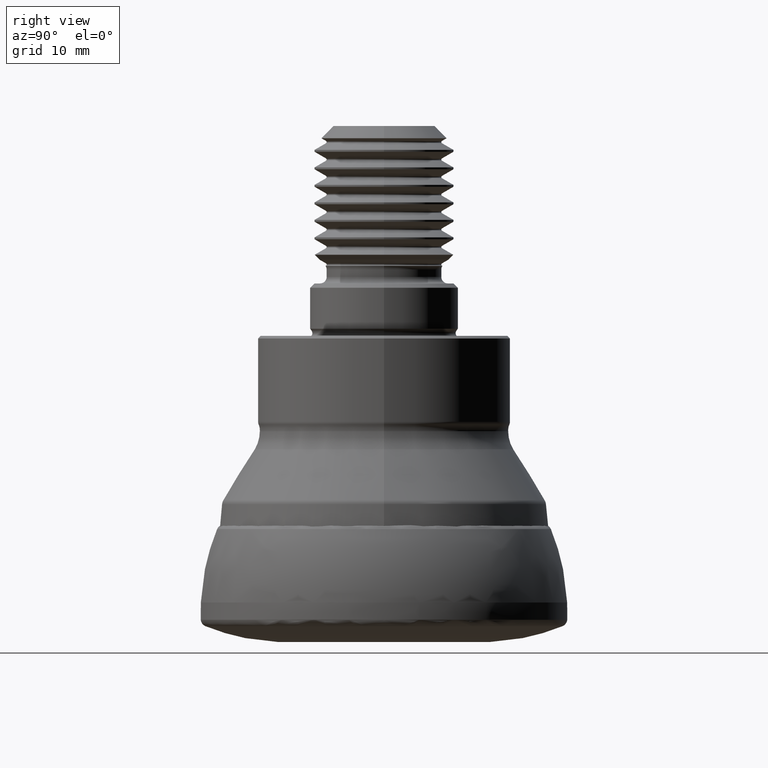
[diagram: clean part render]
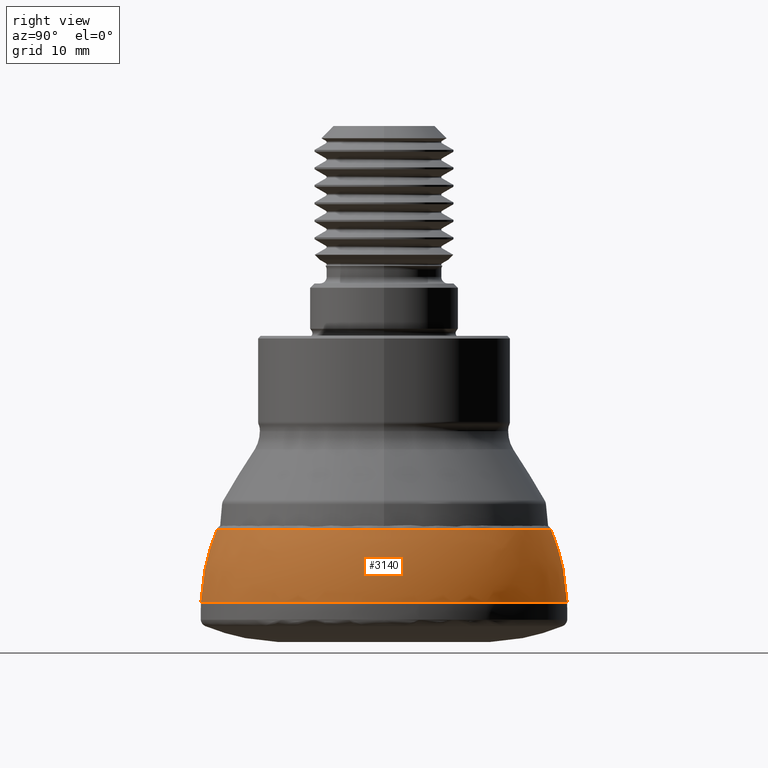
[diagram: same view with one face highlighted and labeled with its STEP entity id]
A machine part, right view. The second image highlights one B-rep face of the part: STEP entity #3140.
In plain terms, the highlighted face is a freeform B-spline surface patch.
Its self-contained STEP definition (entity closure, byte-faithful):
#55 = CARTESIAN_POINT ( 'NONE',  ( 38.16034359974942400, -19.08017179987456300, -12.91075774162391600 ) ) ;
#69 = CARTESIAN_POINT ( 'NONE',  ( 9.287325274022339700E-015, -20.91319732167776700, -4.988665127031693700 ) ) ;
#76 = CARTESIAN_POINT ( 'NONE',  ( -1.460360763683642400E-013, 20.91319732167776700, -4.988665127031688400 ) ) ;
#85 = EDGE_LOOP ( 'NONE', ( #3421, #1505, #930, #934 ) ) ;
#87 = CARTESIAN_POINT ( 'NONE',  ( 41.74390798471905100, 20.87195399235975300, -5.537909702137908700 ) ) ;
#117 = CARTESIAN_POINT ( 'NONE',  ( -9.279478688845693100E-015, 20.89552838263896100, -5.276022748574644300 ) ) ;
#126 = CARTESIAN_POINT ( 'NONE',  ( 8.878448218113837600E-015, -19.99248804336290800, -10.30449603938690100 ) ) ;
#189 = CARTESIAN_POINT ( 'NONE',  ( 41.82639464335581900, -20.91319732167775000, -4.988665127031693700 ) ) ;
#198 = CARTESIAN_POINT ( 'NONE',  ( 9.294836538450731600E-015, -20.93011118551819600, -4.680922276713460000 ) ) ;
#239 = CARTESIAN_POINT ( 'NONE',  ( -1.421865760586798000E-013, 20.36192696733586200, -8.850156383042634200 ) ) ;
#266 = CARTESIAN_POINT ( 'NONE',  ( -9.242476441089125900E-015, 20.81220672803477700, -6.168450668800209000 ) ) ;
#284 = CARTESIAN_POINT ( 'NONE',  ( -1.430838080804522000E-013, 20.49041569958119500, -8.236669064350499200 ) ) ;
#291 = CARTESIAN_POINT ( 'NONE',  ( 9.294836538450731600E-015, -20.93011118551819600, -4.680922276713460000 ) ) ;
#317 = CARTESIAN_POINT ( 'NONE',  ( -8.569995424227626300E-015, 19.29791409955917600, -12.36898838747600700 ) ) ;
#363 = CARTESIAN_POINT ( 'NONE',  ( 40.39964672597151500, 20.19982336298597400, -9.534295499659711100 ) ) ;
#403 = CARTESIAN_POINT ( 'NONE',  ( -8.971114205074395100E-015, 20.20115329553557300, -9.517241501432694800 ) ) ;
#448 = CARTESIAN_POINT ( 'NONE',  ( 1.462024926033985000E-013, -20.93702907371706000, -4.530690978079143800 ) ) ;
#457 = CARTESIAN_POINT ( 'NONE',  ( -1.361076199141745500E-013, 19.49138584817303200, -11.86399644861487500 ) ) ;
#512 = CARTESIAN_POINT ( 'NONE',  ( -9.129004011152439700E-015, 20.55668953144489200, -7.906361216996787200 ) ) ;
#542 = FACE_OUTER_BOUND ( 'NONE', #85, .T. ) ;
#559 = CARTESIAN_POINT ( 'NONE',  ( 41.51857790130647200, -20.75928895065308000, -6.586544729047187900 ) ) ;
#567 = CARTESIAN_POINT ( 'NONE',  ( 9.246777619321765400E-015, -20.82189212037765100, -6.056738354144201300 ) ) ;
#578 = CARTESIAN_POINT ( 'NONE',  ( 9.269009556493782700E-015, -20.87195399235946500, -5.537909702137913100 ) ) ;
#672 = CARTESIAN_POINT ( 'NONE',  ( 41.36736330277072700, 20.68368165138558700, -7.126843972194372200 ) ) ;
#741 = CARTESIAN_POINT ( 'NONE',  ( -9.193610620237663100E-015, 20.70217068174583700, -7.024565739096754400 ) ) ;
#749 = CARTESIAN_POINT ( 'NONE',  ( 9.269009556493782700E-015, -20.87195399235946500, -5.537909702137913100 ) ) ;
#784 = CARTESIAN_POINT ( 'NONE',  ( -1.332361275623379900E-013, 19.08017179987054500, -12.91075774162229500 ) ) ;
#787 = CARTESIAN_POINT ( 'NONE',  ( 41.86022237103667700, -20.93011118551817900, -4.680922276713460000 ) ) ;
#891 = CARTESIAN_POINT ( 'NONE',  ( 8.539457059032322300E-015, -19.22914781450220200, -12.54847849801725500 ) ) ;
#916 = CARTESIAN_POINT ( 'NONE',  ( 41.87405814743440400, -20.93702907371704200, -4.530690978079138500 ) ) ;
#930 = ORIENTED_EDGE ( 'NONE', *, *, #1406, .F. ) ;
#934 = ORIENTED_EDGE ( 'NONE', *, *, #3244, .F. ) ;
#946 = CARTESIAN_POINT ( 'NONE',  ( -9.292956120231769100E-015, 20.92587686012309000, -4.772876379563987500 ) ) ;
#951 = CARTESIAN_POINT ( 'NONE',  ( -1.410546126395841800E-013, 20.19982336298569700, -9.534295499659711100 ) ) ;
#995 = CARTESIAN_POINT ( 'NONE',  ( 0.0000000000000000000, 5.658837121490543800E-016, -4.530690978079136700 ) ) ;
#998 = CARTESIAN_POINT ( 'NONE',  ( 41.36736330277087600, -20.68368165138527800, -7.126843972194377500 ) ) ;
#1004 = VERTEX_POINT ( 'NONE', #1999 ) ;
#1065 = CARTESIAN_POINT ( 'NONE',  ( -1.332361275623379900E-013, 19.08017179987054500, -12.91075774162229500 ) ) ;
#1085 = CARTESIAN_POINT ( 'NONE',  ( -8.927366683528101900E-015, 20.10264263466839900, -9.895176163320622100 ) ) ;
#1099 = VERTEX_POINT ( 'NONE', #784 ) ;
#1124 = CARTESIAN_POINT ( 'NONE',  ( 41.51857790130632300, 20.75928895065338900, -6.586544729047182600 ) ) ;
#1144 = CARTESIAN_POINT ( 'NONE',  ( 40.72385393467200000, -20.36192696733584400, -8.850156383042636000 ) ) ;
#1197 = CARTESIAN_POINT ( 'NONE',  ( 9.218976227144674200E-015, -20.75928895065309400, -6.586544729047187000 ) ) ;
#1311 = CARTESIAN_POINT ( 'NONE',  ( 41.74390798471921500, -20.87195399235944400, -5.537909702137914000 ) ) ;
#1322 = CARTESIAN_POINT ( 'NONE',  ( 41.18856917093750500, -20.59428458546859300, -7.677084969791758700 ) ) ;
#1342 =( BOUNDED_SURFACE ( )  B_SPLINE_SURFACE ( 3, 3, ( 
 ( #2437, #2203, #916, #2582 ),
 ( #3352, #1567, #787, #291 ),
 ( #76, #1743, #189, #3257 ),
 ( #1379, #87, #1311, #749 ),
 ( #1371, #2299, #1774, #567 ),
 ( #3553, #1124, #559, #2904 ),
 ( #3316, #672, #998, #2744 ),
 ( #1766, #1889, #1322, #3111 ),
 ( #284, #2398, #3265, #1977 ),
 ( #239, #2637, #1144, #2283 ),
 ( #951, #363, #2770, #1947 ),
 ( #3057, #1912, #3314, #2187 ),
 ( #1612, #3502, #3152, #2453 ),
 ( #457, #2873, #3478, #2465 ),
 ( #1806, #3309, #2148, #2646 ),
 ( #2785, #1925, #55, #2848 ) ),
 .UNSPECIFIED., .F., .F., .T. ) 
 B_SPLINE_SURFACE_WITH_KNOTS ( ( 4, 1, 1, 1, 1, 1, 1, 1, 1, 1, 1, 1, 1, 4 ),
 ( 4, 4 ),
 ( 0.0000000000000000000, 0.05754272076215807100, 0.1165378318709339300, 0.1769699709003722500, 0.2388218295748854600, 0.3020740703432808800, 0.3667052486360127800, 0.4326917418694238800, 0.5000076862841006400, 0.5846898203821047100, 0.6771932444244267400, 0.7773721188914669600, 0.8850468165806653100, 1.000000000000000000 ),
 ( 0.0000000000000000000, 1.000000000000000000 ),
 .UNSPECIFIED. ) 
 GEOMETRIC_REPRESENTATION_ITEM ( )  RATIONAL_B_SPLINE_SURFACE ( (
 ( 1.000000000000000000, 0.3333333333333311500, 0.3333333333333311500, 1.000000000000000000),
 ( 1.000000000000000000, 0.3333333333333311500, 0.3333333333333311500, 1.000000000000000000),
 ( 1.000000000000000000, 0.3333333333333311500, 0.3333333333333311500, 1.000000000000000000),
 ( 1.000000000000000000, 0.3333333333333311500, 0.3333333333333311500, 1.000000000000000000),
 ( 1.000000000000000000, 0.3333333333333311500, 0.3333333333333311500, 1.000000000000000000),
 ( 1.000000000000000000, 0.3333333333333311500, 0.3333333333333311500, 1.000000000000000000),
 ( 1.000000000000000000, 0.3333333333333311500, 0.3333333333333311500, 1.000000000000000000),
 ( 1.000000000000000000, 0.3333333333333311500, 0.3333333333333311500, 1.000000000000000000),
 ( 1.000000000000000000, 0.3333333333333311500, 0.3333333333333311500, 1.000000000000000000),
 ( 1.000000000000000000, 0.3333333333333311500, 0.3333333333333311500, 1.000000000000000000),
 ( 1.000000000000000000, 0.3333333333333311500, 0.3333333333333311500, 1.000000000000000000),
 ( 1.000000000000000000, 0.3333333333333311500, 0.3333333333333311500, 1.000000000000000000),
 ( 1.000000000000000000, 0.3333333333333311500, 0.3333333333333311500, 1.000000000000000000),
 ( 1.000000000000000000, 0.3333333333333311500, 0.3333333333333311500, 1.000000000000000000),
 ( 1.000000000000000000, 0.3333333333333311500, 0.3333333333333311500, 1.000000000000000000),
 ( 1.000000000000000000, 0.3333333333333311500, 0.3333333333333311500, 1.000000000000000000) ) ) 
 REPRESENTATION_ITEM ( '' )  SURFACE ( )  );
#1371 = CARTESIAN_POINT ( 'NONE',  ( -1.453984955554068900E-013, 20.82189212037765100, -6.056738354144195900 ) ) ;
#1379 = CARTESIAN_POINT ( 'NONE',  ( -1.457480757390310100E-013, 20.87195399235946500, -5.537909702137908700 ) ) ;
#1406 = EDGE_CURVE ( 'NONE', #1099, #1004, #1524, .T. ) ;
#1433 = VERTEX_POINT ( 'NONE', #2260 ) ;
#1438 = CARTESIAN_POINT ( 'NONE',  ( 9.099572517526320000E-015, -20.49041569958119200, -8.236669064350504500 ) ) ;
#1466 = DIRECTION ( 'NONE',  ( -0.0000000000000000000, 1.249000902703301100E-016, -1.000000000000000000 ) ) ;
#1476 = CARTESIAN_POINT ( 'NONE',  ( -9.065184099543122100E-015, 20.41297986637361500, -8.616822966213641500 ) ) ;
#1505 = ORIENTED_EDGE ( 'NONE', *, *, #3084, .T. ) ;
#1524 = CIRCLE ( 'NONE', #1917, 19.08017179987054500 ) ;
#1567 = CARTESIAN_POINT ( 'NONE',  ( 41.86022237103652800, 20.93011118551848800, -4.680922276713454600 ) ) ;
#1608 = CARTESIAN_POINT ( 'NONE',  ( -8.878966032681826400E-015, 19.99365405811052600, -10.28760452784765900 ) ) ;
#1612 = CARTESIAN_POINT ( 'NONE',  ( -1.378427379176761900E-013, 19.73986462195284400, -11.13042967554824100 ) ) ;
#1620 = CARTESIAN_POINT ( 'NONE',  ( 8.655914140197851000E-015, -19.49138584817302800, -11.86399644861488100 ) ) ;
#1637 = CARTESIAN_POINT ( 'NONE',  ( 9.145699568988073300E-015, -20.59428458546861100, -7.677084969791757800 ) ) ;
#1657 = CARTESIAN_POINT ( 'NONE',  ( 1.332361275623379900E-013, -19.08017179987053800, -12.91075774162230500 ) ) ;
#1743 = CARTESIAN_POINT ( 'NONE',  ( 41.82639464335566300, 20.91319732167805900, -4.988665127031688400 ) ) ;
#1766 = CARTESIAN_POINT ( 'NONE',  ( -1.438091206339769200E-013, 20.59428458546861400, -7.677084969791752500 ) ) ;
#1774 = CARTESIAN_POINT ( 'NONE',  ( 41.64378424075558600, -20.82189212037763300, -6.056738354144201300 ) ) ;
#1786 = CARTESIAN_POINT ( 'NONE',  ( 9.185399841353912300E-015, -20.68368165138529600, -7.126843972194376600 ) ) ;
#1806 = CARTESIAN_POINT ( 'NONE',  ( -1.342764215123813000E-013, 19.22914781450220500, -12.54847849801725000 ) ) ;
#1828 = CARTESIAN_POINT ( 'NONE',  ( -8.825599025098927700E-015, 19.87348224037841900, -10.69404698537455200 ) ) ;
#1845 = CARTESIAN_POINT ( 'NONE',  ( 9.042512057948844000E-015, -20.36192696733585800, -8.850156383042639500 ) ) ;
#1889 = CARTESIAN_POINT ( 'NONE',  ( 41.18856917093736300, 20.59428458546890200, -7.677084969791753400 ) ) ;
#1912 = CARTESIAN_POINT ( 'NONE',  ( 39.98497608672594300, 19.99248804336318500, -10.30449603938689600 ) ) ;
#1917 = AXIS2_PLACEMENT_3D ( 'NONE', #2567, #1466, #3112 ) ;
#1925 = CARTESIAN_POINT ( 'NONE',  ( 38.16034359974928900, 19.08017179987485100, -12.91075774162391100 ) ) ;
#1932 = CARTESIAN_POINT ( 'NONE',  ( 9.246777619321765400E-015, -20.82189212037765100, -6.056738354144201300 ) ) ;
#1947 = CARTESIAN_POINT ( 'NONE',  ( 8.970523596379138500E-015, -20.19982336298569300, -9.534295499659716500 ) ) ;
#1977 = CARTESIAN_POINT ( 'NONE',  ( 9.099572517526320000E-015, -20.49041569958119200, -8.236669064350504500 ) ) ;
#1990 = B_SPLINE_CURVE_WITH_KNOTS ( 'NONE', 3,
 ( #2602, #198, #69, #578, #1932, #1197, #1786, #1637, #1438, #1845, #3019, #126, #2413, #1620, #891, #1657 ),
 .UNSPECIFIED., .F., .F.,
 ( 4, 1, 1, 1, 1, 1, 1, 1, 1, 1, 1, 1, 1, 4 ),
 ( 0.0000000000000000000, 0.05754272076215807100, 0.1165378318709339300, 0.1769699709003722500, 0.2388218295748854600, 0.3020740703432808800, 0.3667052486360127800, 0.4326917418694238800, 0.5000076862841006400, 0.5846898203821047100, 0.6771932444244267400, 0.7773721188914669600, 0.8850468165806653100, 1.000000000000000000 ),
 .UNSPECIFIED. ) ;
#1999 = CARTESIAN_POINT ( 'NONE',  ( 1.332361275623379900E-013, -19.08017179987053800, -12.91075774162230500 ) ) ;
#2061 = CARTESIAN_POINT ( 'NONE',  ( -8.766942549199594900E-015, 19.74139959887687500, -11.11396870091083100 ) ) ;
#2064 = EDGE_CURVE ( 'NONE', #1433, #3272, #2735, .T. ) ;
#2148 = CARTESIAN_POINT ( 'NONE',  ( 38.45829562900466000, -19.22914781450218400, -12.54847849801725500 ) ) ;
#2187 = CARTESIAN_POINT ( 'NONE',  ( 8.878448218113837600E-015, -19.99248804336290800, -10.30449603938690100 ) ) ;
#2203 = CARTESIAN_POINT ( 'NONE',  ( 41.87405814743425500, 20.93702907371735100, -4.530690978079134000 ) ) ;
#2229 = DIRECTION ( 'NONE',  ( -0.0000000000000000000, 1.249000902703301100E-016, -1.000000000000000000 ) ) ;
#2239 = CARTESIAN_POINT ( 'NONE',  ( -1.462024926033985000E-013, 20.93702907371706000, -4.530690978079134000 ) ) ;
#2260 = CARTESIAN_POINT ( 'NONE',  ( -1.462024926033985000E-013, 20.93702907371706000, -4.530690978079134000 ) ) ;
#2283 = CARTESIAN_POINT ( 'NONE',  ( 9.042512057948844000E-015, -20.36192696733585800, -8.850156383042639500 ) ) ;
#2299 = CARTESIAN_POINT ( 'NONE',  ( 41.64378424075543700, 20.82189212037794200, -6.056738354144195900 ) ) ;
#2398 = CARTESIAN_POINT ( 'NONE',  ( 40.98083139916251800, 20.49041569958148300, -8.236669064350499200 ) ) ;
#2413 = CARTESIAN_POINT ( 'NONE',  ( 8.766260882510216600E-015, -19.73986462195284000, -11.13042967554824600 ) ) ;
#2437 = CARTESIAN_POINT ( 'NONE',  ( -1.462024926033985000E-013, 20.93702907371706000, -4.530690978079134000 ) ) ;
#2453 = CARTESIAN_POINT ( 'NONE',  ( 8.766260882510216600E-015, -19.73986462195284000, -11.13042967554824600 ) ) ;
#2465 = CARTESIAN_POINT ( 'NONE',  ( 8.655914140197851000E-015, -19.49138584817302800, -11.86399644861488100 ) ) ;
#2567 = CARTESIAN_POINT ( 'NONE',  ( 0.0000000000000000000, 1.612554807386988200E-015, -12.91075774162229600 ) ) ;
#2582 = CARTESIAN_POINT ( 'NONE',  ( 9.297908697954811700E-015, -20.93702907371706000, -4.530690978079139300 ) ) ;
#2602 = CARTESIAN_POINT ( 'NONE',  ( 1.462024926033985000E-013, -20.93702907371706000, -4.530690978079143800 ) ) ;
#2637 = CARTESIAN_POINT ( 'NONE',  ( 40.72385393467185800, 20.36192696733614900, -8.850156383042630600 ) ) ;
#2646 = CARTESIAN_POINT ( 'NONE',  ( 8.539457059032322300E-015, -19.22914781450220200, -12.54847849801725500 ) ) ;
#2721 = CARTESIAN_POINT ( 'NONE',  ( -9.010518836790373200E-015, 20.28988463789193000, -9.154232868878249700 ) ) ;
#2735 = CIRCLE ( 'NONE', #2746, 20.93702907371706000 ) ;
#2744 = CARTESIAN_POINT ( 'NONE',  ( 9.185399841353912300E-015, -20.68368165138529600, -7.126843972194376600 ) ) ;
#2746 = AXIS2_PLACEMENT_3D ( 'NONE', #995, #2229, #2939 ) ;
#2770 = CARTESIAN_POINT ( 'NONE',  ( 40.39964672597166400, -20.19982336298567600, -9.534295499659716500 ) ) ;
#2785 = CARTESIAN_POINT ( 'NONE',  ( -1.332361275623661800E-013, 19.08017179987458400, -12.91075774162391500 ) ) ;
#2848 = CARTESIAN_POINT ( 'NONE',  ( 8.473298418409740200E-015, -19.08017179987458100, -12.91075774162392000 ) ) ;
#2873 = CARTESIAN_POINT ( 'NONE',  ( 38.98277169634617700, 19.49138584817330200, -11.86399644861487500 ) ) ;
#2904 = CARTESIAN_POINT ( 'NONE',  ( 9.218976227144674200E-015, -20.75928895065309400, -6.586544729047187000 ) ) ;
#2939 = DIRECTION ( 'NONE',  ( 0.0000000000000000000, 1.000000000000000000, 1.242814921259145400E-016 ) ) ;
#3019 = CARTESIAN_POINT ( 'NONE',  ( 8.970523596379138500E-015, -20.19982336298569300, -9.534295499659716500 ) ) ;
#3046 = CARTESIAN_POINT ( 'NONE',  ( -8.506894195583468100E-015, 19.15582276465492800, -12.72679004476181300 ) ) ;
#3057 = CARTESIAN_POINT ( 'NONE',  ( -1.396067978408921100E-013, 19.99248804336291100, -10.30449603938689600 ) ) ;
#3084 = EDGE_CURVE ( 'NONE', #3272, #1004, #1990, .T. ) ;
#3111 = CARTESIAN_POINT ( 'NONE',  ( 9.145699568988073300E-015, -20.59428458546861100, -7.677084969791757800 ) ) ;
#3112 = DIRECTION ( 'NONE',  ( 0.0000000000000000000, 1.000000000000000000, 9.091760253377681200E-017 ) ) ;
#3140 = ADVANCED_FACE ( 'NONE', ( #542 ), #1342, .F. ) ;
#3152 = CARTESIAN_POINT ( 'NONE',  ( 39.47972924390594300, -19.73986462195282200, -11.13042967554824600 ) ) ;
#3224 = CARTESIAN_POINT ( 'NONE',  ( -8.702701552825109400E-015, 19.59674173520988600, -11.54681014301741200 ) ) ;
#3244 = EDGE_CURVE ( 'NONE', #1433, #1099, #3545, .T. ) ;
#3257 = CARTESIAN_POINT ( 'NONE',  ( 9.287325274022339700E-015, -20.91319732167776700, -4.988665127031693700 ) ) ;
#3265 = CARTESIAN_POINT ( 'NONE',  ( 40.98083139916266800, -20.49041569958117700, -8.236669064350504500 ) ) ;
#3272 = VERTEX_POINT ( 'NONE', #448 ) ;
#3309 = CARTESIAN_POINT ( 'NONE',  ( 38.45829562900453200, 19.22914781450246800, -12.54847849801725000 ) ) ;
#3314 = CARTESIAN_POINT ( 'NONE',  ( 39.98497608672607800, -19.99248804336289000, -10.30449603938690100 ) ) ;
#3316 = CARTESIAN_POINT ( 'NONE',  ( -1.444333770087677500E-013, 20.68368165138529900, -7.126843972194372200 ) ) ;
#3352 = CARTESIAN_POINT ( 'NONE',  ( -1.461541852482974300E-013, 20.93011118551819600, -4.680922276713454600 ) ) ;
#3421 = ORIENTED_EDGE ( 'NONE', *, *, #2064, .T. ) ;
#3478 = CARTESIAN_POINT ( 'NONE',  ( 38.98277169634631900, -19.49138584817301000, -11.86399644861488100 ) ) ;
#3502 = CARTESIAN_POINT ( 'NONE',  ( 39.47972924390581500, 19.73986462195311700, -11.13042967554824100 ) ) ;
#3545 = B_SPLINE_CURVE_WITH_KNOTS ( 'NONE', 3,
 ( #2239, #946, #117, #266, #741, #512, #1476, #2721, #403, #1085, #1608, #1828, #2061, #3224, #3563, #317, #3046, #1065 ),
 .UNSPECIFIED., .F., .F.,
 ( 4, 1, 1, 1, 1, 1, 1, 1, 1, 1, 1, 1, 1, 1, 1, 4 ),
 ( 0.0000000000000000000, 0.09276367213084790700, 0.1892215027338767200, 0.2893033255813523000, 0.3929255821787589500, 0.4999905446993850900, 0.5413469228553350300, 0.5846745866012662600, 0.6299581993202301200, 0.6771805695434467400, 0.7263225210160447800, 0.7773627642390981100, 0.8302777708570369100, 0.8850416523554838200, 0.9416260446222443100, 1.000000000000000000 ),
 .UNSPECIFIED. ) ;
#3553 = CARTESIAN_POINT ( 'NONE',  ( -1.449613399577154700E-013, 20.75928895065309400, -6.586544729047181700 ) ) ;
#3563 = CARTESIAN_POINT ( 'NONE',  ( -8.632468884437497800E-015, 19.43859182562004400, -11.99185375309814500 ) ) ;